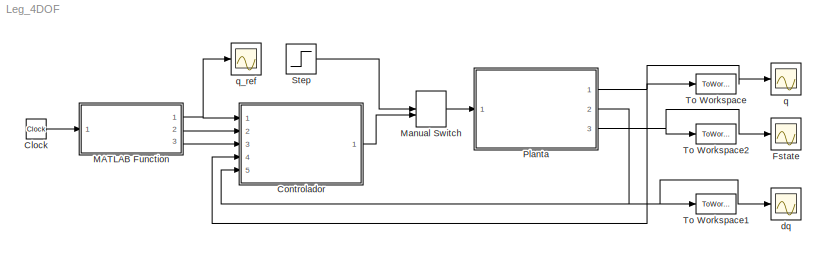
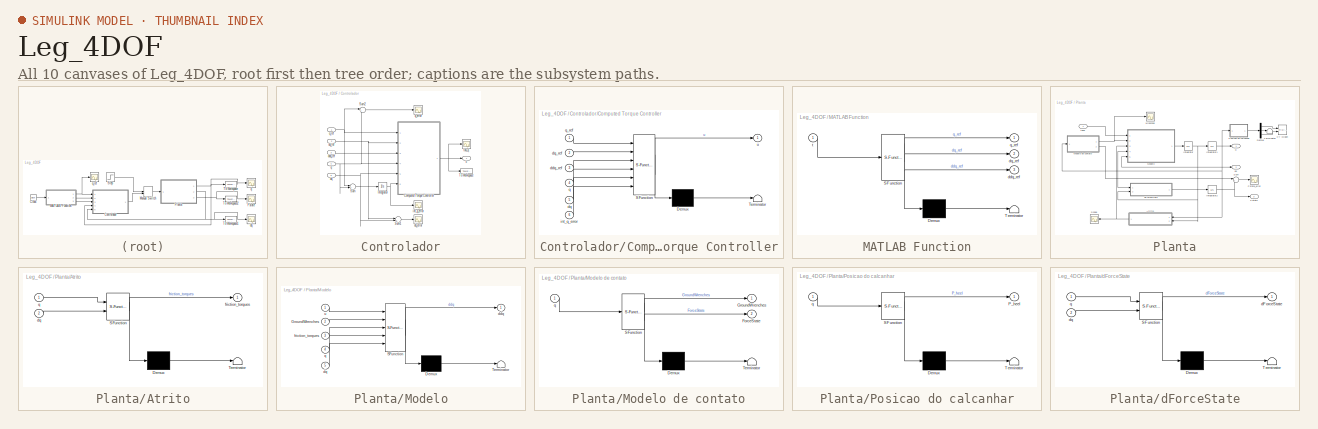
[diagram: thumbnail index - all 10 canvases of the model, root first then tree order]
MODEL Leg_4DOF
KIND model
BLOCK [Clock] Clock
  SID = 45
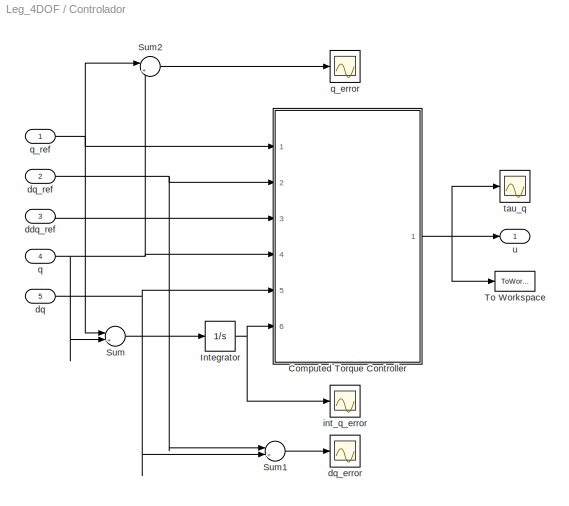
BLOCK [SubSystem] Controlador
  Ports = [5, 1]
  RequestExecContextInheritance = off
  SID = 20
  Variant = off
BLOCK [SubSystem] Controlador/Computed Torque Controller
  ErrorFcn = Stateflow.Translate.translate
  PermitHierarchicalResolution = ExplicitOnly
  Ports = [6, 1]
  RequestExecContextInheritance = off
  SFBlockType = MATLAB Function
  SID = 22
  TreatAsAtomicUnit = on
  Variant = off
BLOCK [Demux] Controlador/Computed Torque Controller/ Demux 
  Outputs = 1
  Ports = [1, 1]
  SID = 22::47
BLOCK [S-Function] Controlador/Computed Torque Controller/ SFunction 
  EnableBusSupport = off
  FunctionName = sf_sfun
  Parameters = G_ctrl,Inertia_ctrl,Kd,Ki,Kp,L_ctrl,Mass_ctrl,R_ctrl,h_ctrl,joint_type
  PortCounts = [6 2]
  Ports = [6, 2]
  SFcnIsStateOwnerBlock = off
  SFunctionDeploymentMode = off
  SID = 22::46
  Tag = Stateflow S-Function Leg_4DOF 1
BLOCK [Terminator] Controlador/Computed Torque Controller/ Terminator 
  SID = 22::48
BLOCK [Inport] Controlador/Computed Torque Controller/ddq_ref
  IconDisplay = Port number
  Port = 3
  SID = 22::38
BLOCK [Inport] Controlador/Computed Torque Controller/dq
  IconDisplay = Port number
  Port = 5
  SID = 22::24
BLOCK [Inport] Controlador/Computed Torque Controller/dq_ref
  IconDisplay = Port number
  Port = 2
  SID = 22::42
BLOCK [Inport] Controlador/Computed Torque Controller/int_q_error
  IconDisplay = Port number
  Port = 6
  SID = 22::44
BLOCK [Inport] Controlador/Computed Torque Controller/q
  IconDisplay = Port number
  Port = 4
  SID = 22::23
BLOCK [Inport] Controlador/Computed Torque Controller/q_ref
  IconDisplay = Port number
  SID = 22::34
BLOCK [Outport] Controlador/Computed Torque Controller/u
  IconDisplay = Port number
  SID = 22::33
BLOCK [Integrator] Controlador/Integrator
  InitialCondition = zeros(4,1)
  Ports = [1, 1]
  SID = 59
BLOCK [Sum] Controlador/Sum
  IconShape = round
  InputSameDT = off
  Inputs = |+-
  OutDataTypeStr = Inherit: Inherit via internal rule
  Ports = [2, 1]
  SID = 32
  SaturateOnIntegerOverflow = off
BLOCK [Sum] Controlador/Sum1
  IconShape = round
  InputSameDT = off
  Inputs = |+-
  OutDataTypeStr = Inherit: Inherit via internal rule
  Ports = [2, 1]
  SID = 34
  SaturateOnIntegerOverflow = off
BLOCK [Sum] Controlador/Sum2
  IconShape = round
  InputSameDT = off
  Inputs = |+-
  OutDataTypeStr = Inherit: Inherit via internal rule
  Ports = [2, 1]
  SID = 63
  SaturateOnIntegerOverflow = off
BLOCK [ToWorkspace] Controlador/To Workspace
  FixptAsFi = on
  MaxDataPoints = inf
  Ports = [1]
  SID = 89
  SampleTime = -1
  Save2DSignal = 3-D array (concatenate along third dimension)
  SaveFormat = Timeseries
  VariableName = u
BLOCK [Inport] Controlador/ddq_ref
  IconDisplay = Port number
  Port = 3
  SID = 36
BLOCK [Inport] Controlador/dq
  IconDisplay = Port number
  Port = 5
  SID = 29
BLOCK [Scope] Controlador/dq_error
  NumInputPorts = 1
  Ports = [1]
  SID = 35
  ScopeSpecificationString = Simulink.scopes.TimeScopeBlockCfg('CurrentConfiguration', extmgr.ConfigurationSet(extmgr.Configuration('Core','General UI',true),extmgr.Configuration('Core','Source UI',true),extmgr.Configuration('Sources','WiredSimulink',true,'DataLoggingVariableName','ScopeData3','DataLoggingLimitDataPoints',true,'DataLoggingSaveFormat','Array','DataLoggingDecimation','1','DataLoggingDecimateData',true),extmgr.C...<+898ch>
BLOCK [Inport] Controlador/dq_ref
  IconDisplay = Port number
  Port = 2
  SID = 27
BLOCK [Scope] Controlador/int_q_error
  NumInputPorts = 1
  Ports = [1]
  SID = 61
  ScopeSpecificationString = Simulink.scopes.TimeScopeBlockCfg('CurrentConfiguration', extmgr.ConfigurationSet(extmgr.Configuration('Core','General UI',true),extmgr.Configuration('Core','Source UI',true),extmgr.Configuration('Sources','WiredSimulink',true,'DataLoggingVariableName','ScopeData2','DataLoggingLimitDataPoints',true,'DataLoggingSaveFormat','Array','DataLoggingDecimation','1','DataLoggingDecimateData',true),extmgr.C...<+1741ch>
BLOCK [Inport] Controlador/q
  IconDisplay = Port number
  Port = 4
  SID = 28
BLOCK [Scope] Controlador/q_error
  NumInputPorts = 1
  Ports = [1]
  SID = 33
  ScopeSpecificationString = Simulink.scopes.TimeScopeBlockCfg('CurrentConfiguration', extmgr.ConfigurationSet(extmgr.Configuration('Core','General UI',true),extmgr.Configuration('Core','Source UI',true),extmgr.Configuration('Sources','WiredSimulink',true,'DataLoggingVariableName','ScopeData2','DataLoggingLimitDataPoints',true,'DataLoggingSaveFormat','Array','DataLoggingDecimation','1','DataLoggingDecimateData',true),extmgr.C...<+1782ch>
BLOCK [Inport] Controlador/q_ref
  IconDisplay = Port number
  SID = 21
BLOCK [Scope] Controlador/tau_q
  NumInputPorts = 1
  Ports = [1]
  SID = 88
  ScopeSpecificationString = Simulink.scopes.TimeScopeBlockCfg('CurrentConfiguration', extmgr.ConfigurationSet(extmgr.Configuration('Core','General UI',true),extmgr.Configuration('Core','Source UI',true),extmgr.Configuration('Sources','WiredSimulink',true,'DataLoggingLimitDataPoints',true,'DataLoggingSaveFormat','Array','DataLoggingDecimation','1','DataLoggingDecimateData',true,'DataLoggingVariableName','ScopeData1'),extmgr.C...<+1837ch>
BLOCK [Outport] Controlador/u
  IconDisplay = Port number
  SID = 25
BLOCK [Scope] Fstate
  NumInputPorts = 1
  Ports = [1]
  SID = 85
  ScopeSpecificationString = Simulink.scopes.TimeScopeBlockCfg('CurrentConfiguration', extmgr.ConfigurationSet(extmgr.Configuration('Core','General UI',true),extmgr.Configuration('Core','Source UI',true),extmgr.Configuration('Sources','WiredSimulink',true,'DataLoggingLimitDataPoints',true,'DataLoggingSaveFormat','Array','DataLoggingDecimation','1','DataLoggingDecimateData',true,'DataLoggingVariableName','ScopeData2'),extmgr.C...<+1730ch>
BLOCK [SubSystem] MATLAB Function
  ErrorFcn = Stateflow.Translate.translate
  PermitHierarchicalResolution = ExplicitOnly
  Ports = [1, 3]
  RequestExecContextInheritance = off
  SFBlockType = MATLAB Function
  SID = 44
  TreatAsAtomicUnit = on
  Variant = off
BLOCK [Demux] MATLAB Function/ Demux 
  Outputs = 1
  Ports = [1, 1]
  SID = 44::32
BLOCK [S-Function] MATLAB Function/ SFunction 
  EnableBusSupport = off
  FunctionName = sf_sfun
  Parameters = A,n,offset,w
  PortCounts = [1 4]
  Ports = [1, 4]
  SFcnIsStateOwnerBlock = off
  SFunctionDeploymentMode = off
  SID = 44::31
  Tag = Stateflow S-Function Leg_4DOF 3
BLOCK [Terminator] MATLAB Function/ Terminator 
  SID = 44::33
BLOCK [Outport] MATLAB Function/ddq_ref
  IconDisplay = Port number
  Port = 3
  SID = 44::27
BLOCK [Outport] MATLAB Function/dq_ref
  IconDisplay = Port number
  Port = 2
  SID = 44::26
BLOCK [Outport] MATLAB Function/q_ref
  IconDisplay = Port number
  SID = 44::5
BLOCK [Inport] MATLAB Function/t
  IconDisplay = Port number
  SID = 44::1
BLOCK [ManualSwitch] Manual Switch
  CurrentSetting = 0
  SID = 19
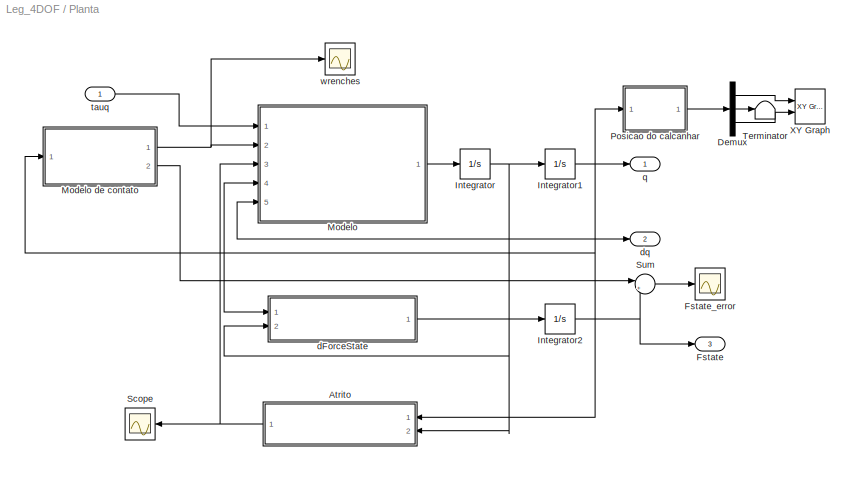
BLOCK [SubSystem] Planta
  Ports = [1, 3]
  RequestExecContextInheritance = off
  SID = 10
  Variant = off
BLOCK [SubSystem] Planta/Atrito
  ErrorFcn = Stateflow.Translate.translate
  PermitHierarchicalResolution = ExplicitOnly
  Ports = [2, 1]
  RequestExecContextInheritance = off
  SFBlockType = MATLAB Function
  SID = 46
  TreatAsAtomicUnit = on
  Variant = off
BLOCK [Demux] Planta/Atrito/ Demux 
  Outputs = 1
  Ports = [1, 1]
  SID = 46::39
BLOCK [S-Function] Planta/Atrito/ SFunction 
  EnableBusSupport = off
  FunctionName = sf_sfun
  PortCounts = [2 2]
  Ports = [2, 2]
  SFcnIsStateOwnerBlock = off
  SFunctionDeploymentMode = off
  SID = 46::38
  Tag = Stateflow S-Function Leg_4DOF 4
BLOCK [Terminator] Planta/Atrito/ Terminator 
  SID = 46::40
BLOCK [Inport] Planta/Atrito/dq
  IconDisplay = Port number
  Port = 2
  SID = 46::24
BLOCK [Outport] Planta/Atrito/friction_torques
  IconDisplay = Port number
  SID = 46::37
BLOCK [Inport] Planta/Atrito/q
  IconDisplay = Port number
  SID = 46::23
BLOCK [Demux] Planta/Demux
  DisplayOption = bar
  Outputs = 3
  Ports = [1, 3]
  SID = 77
BLOCK [Outport] Planta/Fstate
  IconDisplay = Port number
  Port = 3
  SID = 82
BLOCK [Scope] Planta/Fstate_error
  NumInputPorts = 1
  Ports = [1]
  SID = 87
  ScopeSpecificationString = Simulink.scopes.TimeScopeBlockCfg('CurrentConfiguration', extmgr.ConfigurationSet(extmgr.Configuration('Core','General UI',true),extmgr.Configuration('Core','Source UI',true),extmgr.Configuration('Sources','WiredSimulink',true,'DataLoggingLimitDataPoints',true,'DataLoggingSaveFormat','Array','DataLoggingDecimation','1','DataLoggingDecimateData',true,'DataLoggingVariableName','ScopeData3'),extmgr.C...<+1710ch>
BLOCK [Integrator] Planta/Integrator
  InitialCondition = dqInit
  Ports = [1, 1]
  SID = 2
BLOCK [Integrator] Planta/Integrator1
  InitialCondition = qInit
  Ports = [1, 1]
  SID = 3
BLOCK [Integrator] Planta/Integrator2
  InitialCondition = Fstate0
  Ports = [1, 1]
  SID = 83
BLOCK [SubSystem] Planta/Modelo
  ErrorFcn = Stateflow.Translate.translate
  PermitHierarchicalResolution = ExplicitOnly
  Ports = [5, 1]
  RequestExecContextInheritance = off
  SFBlockType = MATLAB Function
  SID = 1
  TreatAsAtomicUnit = on
  Variant = off
BLOCK [SubSystem] Planta/Modelo de contato
  ErrorFcn = Stateflow.Translate.translate
  PermitHierarchicalResolution = ExplicitOnly
  Ports = [1, 2]
  RequestExecContextInheritance = off
  SFBlockType = MATLAB Function
  SID = 53
  TreatAsAtomicUnit = on
  Variant = off
BLOCK [Demux] Planta/Modelo de contato/ Demux 
  Outputs = 1
  Ports = [1, 1]
  SID = 53::61
BLOCK [S-Function] Planta/Modelo de contato/ SFunction 
  EnableBusSupport = off
  FunctionName = sf_sfun
  Parameters = BodyContactPositions,L,beta,h,joint_type,k_b,s_z
  PortCounts = [1 3]
  Ports = [1, 3]
  SFcnIsStateOwnerBlock = off
  SFunctionDeploymentMode = off
  SID = 53::60
  Tag = Stateflow S-Function Leg_4DOF 6
BLOCK [Terminator] Planta/Modelo de contato/ Terminator 
  SID = 53::62
BLOCK [Outport] Planta/Modelo de contato/ForceState
  IconDisplay = Port number
  Port = 2
  SID = 53::59
BLOCK [Outport] Planta/Modelo de contato/GroundWrenches
  IconDisplay = Port number
  SID = 53::37
BLOCK [Inport] Planta/Modelo de contato/q
  IconDisplay = Port number
  SID = 53::49
BLOCK [Demux] Planta/Modelo/ Demux 
  Outputs = 1
  Ports = [1, 1]
  SID = 1::44
BLOCK [S-Function] Planta/Modelo/ SFunction 
  EnableBusSupport = off
  FunctionName = sf_sfun
  Parameters = BodyContact,BodyContactPositions,G,Inertia,L,Mass,R,h,joint_type
  PortCounts = [5 2]
  Ports = [5, 2]
  SFcnIsStateOwnerBlock = off
  SFunctionDeploymentMode = off
  SID = 1::43
  Tag = Stateflow S-Function Leg_4DOF 2
BLOCK [Terminator] Planta/Modelo/ Terminator 
  SID = 1::45
BLOCK [Inport] Planta/Modelo/GroundWrenches
  IconDisplay = Port number
  Port = 2
  SID = 1::42
BLOCK [Outport] Planta/Modelo/ddq
  IconDisplay = Port number
  SID = 1::5
BLOCK [Inport] Planta/Modelo/dq
  IconDisplay = Port number
  Port = 5
  SID = 1::24
BLOCK [Inport] Planta/Modelo/friction_torques
  IconDisplay = Port number
  Port = 3
  SID = 1::38
BLOCK [Inport] Planta/Modelo/q
  IconDisplay = Port number
  Port = 4
  SID = 1::23
BLOCK [Inport] Planta/Modelo/u
  IconDisplay = Port number
  SID = 1::29
BLOCK [SubSystem] Planta/Posicao do calcanhar
  ErrorFcn = Stateflow.Translate.translate
  PermitHierarchicalResolution = ExplicitOnly
  Ports = [1, 1]
  RequestExecContextInheritance = off
  SFBlockType = MATLAB Function
  SID = 64
  TreatAsAtomicUnit = on
  Variant = off
BLOCK [Demux] Planta/Posicao do calcanhar/ Demux 
  Outputs = 1
  Ports = [1, 1]
  SID = 64::56
BLOCK [S-Function] Planta/Posicao do calcanhar/ SFunction 
  EnableBusSupport = off
  FunctionName = sf_sfun
  Parameters = L,h,joint_type
  PortCounts = [1 2]
  Ports = [1, 2]
  SFcnIsStateOwnerBlock = off
  SFunctionDeploymentMode = off
  SID = 64::55
  Tag = Stateflow S-Function Leg_4DOF 5
BLOCK [Terminator] Planta/Posicao do calcanhar/ Terminator 
  SID = 64::57
BLOCK [Outport] Planta/Posicao do calcanhar/P_heel
  IconDisplay = Port number
  SID = 64::37
BLOCK [Inport] Planta/Posicao do calcanhar/q
  IconDisplay = Port number
  SID = 64::48
BLOCK [Scope] Planta/Scope
  NumInputPorts = 1
  Ports = [1]
  SID = 43
  ScopeSpecificationString = Simulink.scopes.TimeScopeBlockCfg('CurrentConfiguration', extmgr.ConfigurationSet(extmgr.Configuration('Core','General UI',true),extmgr.Configuration('Core','Source UI',true),extmgr.Configuration('Sources','WiredSimulink',true,'DataLoggingVariableName','ScopeData4'),extmgr.Configuration('Visuals','Time Domain',true),extmgr.Configuration('Tools','Plot Navigation',true),extmgr.Configuration('Tools',...<+40ch>
BLOCK [Sum] Planta/Sum
  IconShape = round
  InputSameDT = off
  Inputs = |+-
  OutDataTypeStr = Inherit: Inherit via internal rule
  Ports = [2, 1]
  SID = 86
  SaturateOnIntegerOverflow = off
BLOCK [Terminator] Planta/Terminator
  SID = 78
BLOCK [Reference] Planta/XY Graph  REF=simulink/Sinks/XY Graph
  Ports = [2]
  SID = 79
  SourceBlock = simulink/Sinks/XY Graph
  SourceProductBaseCode = SL
  SourceProductName = Simulink
  SourceType = XY scope.
  st = -1
  xmax = 2
  xmin = -2
  ymax = 2
  ymin = -2
BLOCK [SubSystem] Planta/dForceState
  ErrorFcn = Stateflow.Translate.translate
  PermitHierarchicalResolution = ExplicitOnly
  Ports = [2, 1]
  RequestExecContextInheritance = off
  SFBlockType = MATLAB Function
  SID = 81
  TreatAsAtomicUnit = on
  Variant = off
BLOCK [Demux] Planta/dForceState/ Demux 
  Outputs = 1
  Ports = [1, 1]
  SID = 81::48
BLOCK [S-Function] Planta/dForceState/ SFunction 
  EnableBusSupport = off
  FunctionName = sf_sfun
  Parameters = BodyContactPositions,L,beta,h,joint_type,k_b,s_z
  PortCounts = [2 2]
  Ports = [2, 2]
  SFcnIsStateOwnerBlock = off
  SFunctionDeploymentMode = off
  SID = 81::47
  Tag = Stateflow S-Function Leg_4DOF 7
BLOCK [Terminator] Planta/dForceState/ Terminator 
  SID = 81::49
BLOCK [Outport] Planta/dForceState/dForceState
  IconDisplay = Port number
  SID = 81::37
BLOCK [Inport] Planta/dForceState/dq
  IconDisplay = Port number
  Port = 2
  SID = 81::24
BLOCK [Inport] Planta/dForceState/q
  IconDisplay = Port number
  SID = 81::23
BLOCK [Outport] Planta/dq
  IconDisplay = Port number
  Port = 2
  SID = 13
BLOCK [Outport] Planta/q
  IconDisplay = Port number
  SID = 12
BLOCK [Inport] Planta/tauq
  IconDisplay = Port number
  SID = 11
BLOCK [Scope] Planta/wrenches
  NumInputPorts = 1
  Ports = [1]
  SID = 80
  ScopeSpecificationString = Simulink.scopes.TimeScopeBlockCfg('CurrentConfiguration', extmgr.ConfigurationSet(extmgr.Configuration('Core','General UI',true),extmgr.Configuration('Core','Source UI',true),extmgr.Configuration('Sources','WiredSimulink',true,'DataLoggingLimitDataPoints',true,'DataLoggingSaveFormat','Array','DataLoggingDecimation','1','DataLoggingDecimateData',true,'DataLoggingVariableName','ScopeData1'),extmgr.C...<+2184ch>
BLOCK [Step] Step
  After = [1;1;1;1]
  Before = [0;0;0;0]
  SID = 18
  SampleTime = 0
BLOCK [ToWorkspace] To Workspace
  FixptAsFi = on
  MaxDataPoints = inf
  Ports = [1]
  SID = 16
  SampleTime = -1
  Save2DSignal = 3-D array (concatenate along third dimension)
  SaveFormat = Timeseries
  VariableName = q
BLOCK [ToWorkspace] To Workspace1
  FixptAsFi = on
  MaxDataPoints = inf
  Ports = [1]
  SID = 17
  SampleTime = -1
  Save2DSignal = 3-D array (concatenate along third dimension)
  SaveFormat = Timeseries
  VariableName = dq
BLOCK [ToWorkspace] To Workspace2
  FixptAsFi = on
  MaxDataPoints = inf
  Ports = [1]
  SID = 84
  SampleTime = -1
  Save2DSignal = 3-D array (concatenate along third dimension)
  SaveFormat = Timeseries
  VariableName = Fstate
BLOCK [Scope] dq
  NumInputPorts = 1
  Ports = [1]
  SID = 15
  ScopeSpecificationString = Simulink.scopes.TimeScopeBlockCfg('CurrentConfiguration', extmgr.ConfigurationSet(extmgr.Configuration('Core','General UI',true),extmgr.Configuration('Core','Source UI',true),extmgr.Configuration('Sources','WiredSimulink',true,'DataLoggingVariableName','ScopeData1','DataLoggingLimitDataPoints',true,'DataLoggingSaveFormat','Array','DataLoggingDecimation','1','DataLoggingDecimateData',true),extmgr.C...<+1733ch>
BLOCK [Scope] q
  NumInputPorts = 1
  Ports = [1]
  SID = 14
  ScopeSpecificationString = Simulink.scopes.TimeScopeBlockCfg('CurrentConfiguration', extmgr.ConfigurationSet(extmgr.Configuration('Core','General UI',true),extmgr.Configuration('Core','Source UI',true),extmgr.Configuration('Sources','WiredSimulink',true,'DataLoggingLimitDataPoints',true,'DataLoggingSaveFormat','Array','DataLoggingDecimation','1','DataLoggingDecimateData',true),extmgr.Configuration('Visuals','Time Domain',tr...<+1691ch>
BLOCK [Scope] q_ref
  NumInputPorts = 1
  Ports = [1]
  SID = 48
  ScopeSpecificationString = Simulink.scopes.TimeScopeBlockCfg('CurrentConfiguration', extmgr.ConfigurationSet(extmgr.Configuration('Core','General UI',true),extmgr.Configuration('Core','Source UI',true),extmgr.Configuration('Sources','WiredSimulink',true,'DataLoggingLimitDataPoints',true,'DataLoggingSaveFormat','Array','DataLoggingDecimation','1','DataLoggingDecimateData',true,'DataLoggingVariableName','ScopeData1'),extmgr.C...<+1804ch>
LINE Clock:1 -> MATLAB Function:1
LINE Controlador/Computed Torque Controller/ Demux :1 -> Controlador/Computed Torque Controller/ Terminator :1
LINE Controlador/Computed Torque Controller/ SFunction :1 -> Controlador/Computed Torque Controller/ Demux :1
LINE Controlador/Computed Torque Controller/ SFunction :2 -> Controlador/Computed Torque Controller/u:1
LINE Controlador/Computed Torque Controller/ddq_ref:1 -> Controlador/Computed Torque Controller/ SFunction :3
LINE Controlador/Computed Torque Controller/dq:1 -> Controlador/Computed Torque Controller/ SFunction :5
LINE Controlador/Computed Torque Controller/dq_ref:1 -> Controlador/Computed Torque Controller/ SFunction :2
LINE Controlador/Computed Torque Controller/int_q_error:1 -> Controlador/Computed Torque Controller/ SFunction :6
LINE Controlador/Computed Torque Controller/q:1 -> Controlador/Computed Torque Controller/ SFunction :4
LINE Controlador/Computed Torque Controller/q_ref:1 -> Controlador/Computed Torque Controller/ SFunction :1
NET Controlador/Computed Torque Controller:1 -> Controlador/To Workspace:1, Controlador/tau_q:1, Controlador/u:1
NET Controlador/Integrator:1 -> Controlador/Computed Torque Controller:6, Controlador/int_q_error:1
LINE Controlador/Sum1:1 -> Controlador/dq_error:1
LINE Controlador/Sum2:1 -> Controlador/q_error:1
LINE Controlador/Sum:1 -> Controlador/Integrator:1
LINE Controlador/ddq_ref:1 -> Controlador/Computed Torque Controller:3
NET Controlador/dq:1 -> Controlador/Computed Torque Controller:5, Controlador/Sum1:2
NET Controlador/dq_ref:1 -> Controlador/Computed Torque Controller:2, Controlador/Sum1:1
NET Controlador/q:1 -> Controlador/Computed Torque Controller:4, Controlador/Sum2:2, Controlador/Sum:2
NET Controlador/q_ref:1 -> Controlador/Computed Torque Controller:1, Controlador/Sum2:1, Controlador/Sum:1
LINE Controlador:1 -> Manual Switch:2
LINE MATLAB Function/ Demux :1 -> MATLAB Function/ Terminator :1
LINE MATLAB Function/ SFunction :1 -> MATLAB Function/ Demux :1
LINE MATLAB Function/ SFunction :2 -> MATLAB Function/q_ref:1
LINE MATLAB Function/ SFunction :3 -> MATLAB Function/dq_ref:1
LINE MATLAB Function/ SFunction :4 -> MATLAB Function/ddq_ref:1
LINE MATLAB Function/t:1 -> MATLAB Function/ SFunction :1
NET MATLAB Function:1 -> Controlador:1, q_ref:1
LINE MATLAB Function:2 -> Controlador:2
LINE MATLAB Function:3 -> Controlador:3
LINE Manual Switch:1 -> Planta:1
LINE Planta/Atrito/ Demux :1 -> Planta/Atrito/ Terminator :1
LINE Planta/Atrito/ SFunction :1 -> Planta/Atrito/ Demux :1
LINE Planta/Atrito/ SFunction :2 -> Planta/Atrito/friction_torques:1
LINE Planta/Atrito/dq:1 -> Planta/Atrito/ SFunction :2
LINE Planta/Atrito/q:1 -> Planta/Atrito/ SFunction :1
NET Planta/Atrito:1 -> Planta/Modelo:3, Planta/Scope:1
LINE Planta/Demux:1 -> Planta/XY Graph:1
LINE Planta/Demux:2 -> Planta/Terminator:1
LINE Planta/Demux:3 -> Planta/XY Graph:2
NET Planta/Integrator1:1 -> Planta/Atrito:1, Planta/Modelo de contato:1, Planta/Modelo:4, Planta/Posicao do calcanhar:1, Planta/dForceState:1, Planta/q:1
NET Planta/Integrator2:1 -> Planta/Fstate:1, Planta/Sum:2
NET Planta/Integrator:1 -> Planta/Atrito:2, Planta/Integrator1:1, Planta/Modelo:5, Planta/dForceState:2, Planta/dq:1
LINE Planta/Modelo de contato/ Demux :1 -> Planta/Modelo de contato/ Terminator :1
LINE Planta/Modelo de contato/ SFunction :1 -> Planta/Modelo de contato/ Demux :1
LINE Planta/Modelo de contato/ SFunction :2 -> Planta/Modelo de contato/GroundWrenches:1
LINE Planta/Modelo de contato/ SFunction :3 -> Planta/Modelo de contato/ForceState:1
LINE Planta/Modelo de contato/q:1 -> Planta/Modelo de contato/ SFunction :1
NET Planta/Modelo de contato:1 -> Planta/Modelo:2, Planta/wrenches:1
LINE Planta/Modelo de contato:2 -> Planta/Sum:1
LINE Planta/Modelo/ Demux :1 -> Planta/Modelo/ Terminator :1
LINE Planta/Modelo/ SFunction :1 -> Planta/Modelo/ Demux :1
LINE Planta/Modelo/ SFunction :2 -> Planta/Modelo/ddq:1
LINE Planta/Modelo/GroundWrenches:1 -> Planta/Modelo/ SFunction :2
LINE Planta/Modelo/dq:1 -> Planta/Modelo/ SFunction :5
LINE Planta/Modelo/friction_torques:1 -> Planta/Modelo/ SFunction :3
LINE Planta/Modelo/q:1 -> Planta/Modelo/ SFunction :4
LINE Planta/Modelo/u:1 -> Planta/Modelo/ SFunction :1
LINE Planta/Modelo:1 -> Planta/Integrator:1
LINE Planta/Posicao do calcanhar/ Demux :1 -> Planta/Posicao do calcanhar/ Terminator :1
LINE Planta/Posicao do calcanhar/ SFunction :1 -> Planta/Posicao do calcanhar/ Demux :1
LINE Planta/Posicao do calcanhar/ SFunction :2 -> Planta/Posicao do calcanhar/P_heel:1
LINE Planta/Posicao do calcanhar/q:1 -> Planta/Posicao do calcanhar/ SFunction :1
LINE Planta/Posicao do calcanhar:1 -> Planta/Demux:1
LINE Planta/Sum:1 -> Planta/Fstate_error:1
LINE Planta/dForceState/ Demux :1 -> Planta/dForceState/ Terminator :1
LINE Planta/dForceState/ SFunction :1 -> Planta/dForceState/ Demux :1
LINE Planta/dForceState/ SFunction :2 -> Planta/dForceState/dForceState:1
LINE Planta/dForceState/dq:1 -> Planta/dForceState/ SFunction :2
LINE Planta/dForceState/q:1 -> Planta/dForceState/ SFunction :1
LINE Planta/dForceState:1 -> Planta/Integrator2:1
LINE Planta/tauq:1 -> Planta/Modelo:1
NET Planta:1 -> Controlador:4, To Workspace:1, q:1
NET Planta:2 -> Controlador:5, To Workspace1:1, dq:1
NET Planta:3 -> Fstate:1, To Workspace2:1
LINE Step:1 -> Manual Switch:1
note: NET lines group one-source signal fan-out (src -> all destinations, sorted); 1:1 wires keep LINE
CHART Controlador/Computed Torque Controller states=1 transitions=1
  STATE_LABEL 'eML_blk_kernel()'
CHART Planta/Modelo states=1 transitions=1
  STATE_LABEL 'eML_blk_kernel()'
CHART MATLAB Function states=1 transitions=1
  STATE_LABEL 'eML_blk_kernel()'
CHART Planta/Atrito states=1 transitions=1
  STATE_LABEL 'eML_blk_kernel()'
CHART Planta/Posicao do calcanhar states=1 transitions=1
  STATE_LABEL 'eML_blk_kernel()'
CHART Planta/Modelo de contato states=1 transitions=1
  STATE_LABEL 'eML_blk_kernel()'
CHART Planta/dForceState states=1 transitions=1
  STATE_LABEL 'eML_blk_kernel()'
